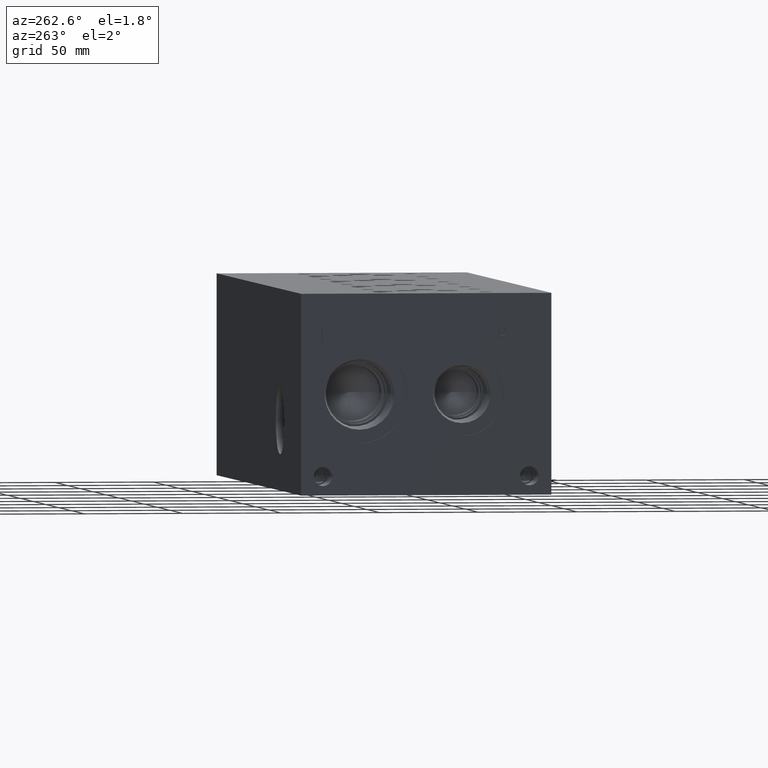
[diagram: clean part render]
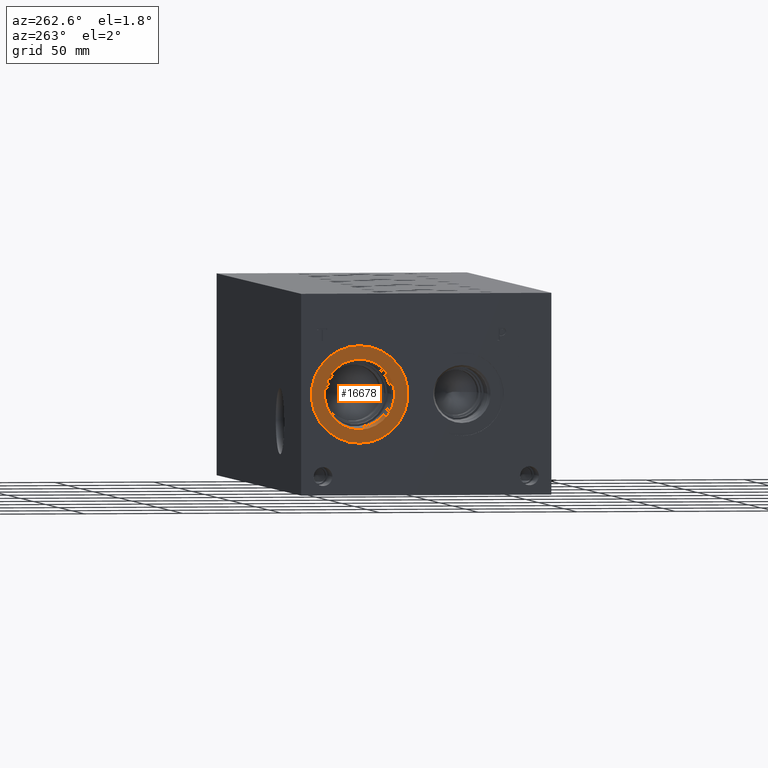
[diagram: same view with one face highlighted and labeled with its STEP entity id]
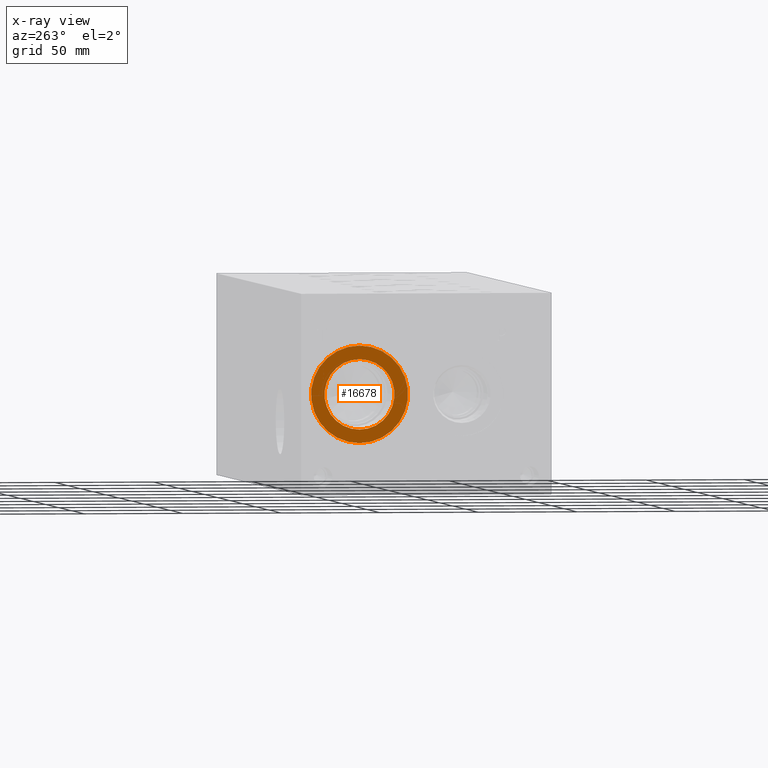
[diagram: x-ray of the same camera — body ghosted, the highlighted face saturated]
A machine part, auxiliary view. The second image highlights one B-rep face of the part: STEP entity #16678.
The next image is the same camera in x-ray: the body ghosted, the highlighted face saturated — about 0% of this face is hidden behind the body in this view.
In plain terms, the highlighted planar face has unit normal (1, 0, 0).
Its self-contained STEP definition (entity closure, byte-faithful):
#652=CIRCLE('',#17588,24.5618);
#653=CIRCLE('',#17589,24.5618);
#654=CIRCLE('',#17591,17.7546);
#655=CIRCLE('',#17592,17.7546);
#1412=FACE_BOUND('',#3159,.T.);
#2184=FACE_OUTER_BOUND('',#3158,.T.);
#3158=EDGE_LOOP('',(#14095,#14096));
#3159=EDGE_LOOP('',(#14097,#14098));
#7614=VERTEX_POINT('',#28343);
#7615=VERTEX_POINT('',#28345);
#7616=VERTEX_POINT('',#28349);
#7617=VERTEX_POINT('',#28350);
#9859=EDGE_CURVE('',#7614,#7615,#652,.T.);
#9860=EDGE_CURVE('',#7615,#7614,#653,.T.);
#9861=EDGE_CURVE('',#7616,#7617,#654,.T.);
#9862=EDGE_CURVE('',#7617,#7616,#655,.T.);
#14095=ORIENTED_EDGE('',*,*,#9860,.F.);
#14096=ORIENTED_EDGE('',*,*,#9859,.F.);
#14097=ORIENTED_EDGE('',*,*,#9861,.T.);
#14098=ORIENTED_EDGE('',*,*,#9862,.T.);
#15357=PLANE('',#17590);
#16678=ADVANCED_FACE('',(#2184,#1412),#15357,.F.);
#17588=AXIS2_PLACEMENT_3D('',#28346,#20809,#20810);
#17589=AXIS2_PLACEMENT_3D('',#28347,#20811,#20812);
#17590=AXIS2_PLACEMENT_3D('',#28348,#20813,#20814);
#17591=AXIS2_PLACEMENT_3D('',#28351,#20815,#20816);
#17592=AXIS2_PLACEMENT_3D('',#28352,#20817,#20818);
#20809=DIRECTION('center_axis',(1.,0.,0.));
#20810=DIRECTION('ref_axis',(0.,0.,-1.));
#20811=DIRECTION('center_axis',(1.,0.,0.));
#20812=DIRECTION('ref_axis',(0.,0.,-1.));
#20813=DIRECTION('center_axis',(1.,0.,0.));
#20814=DIRECTION('ref_axis',(0.,0.,-1.));
#20815=DIRECTION('center_axis',(1.,0.,0.));
#20816=DIRECTION('ref_axis',(0.,0.,-1.));
#20817=DIRECTION('center_axis',(1.,0.,0.));
#20818=DIRECTION('ref_axis',(0.,0.,-1.));
#28343=CARTESIAN_POINT('',(0.7874,97.2566,26.2382));
#28345=CARTESIAN_POINT('',(0.7874,97.2566,75.3618));
#28346=CARTESIAN_POINT('Origin',(0.7874,97.2566,50.8));
#28347=CARTESIAN_POINT('Origin',(0.7874,97.2566,50.8));
#28348=CARTESIAN_POINT('Origin',(0.7874,97.2566,68.5546));
#28349=CARTESIAN_POINT('',(0.7874,97.2566,68.5546));
#28350=CARTESIAN_POINT('',(0.787400000000001,97.2566,33.0454));
#28351=CARTESIAN_POINT('Origin',(0.7874,97.2566,50.8));
#28352=CARTESIAN_POINT('Origin',(0.7874,97.2566,50.8));